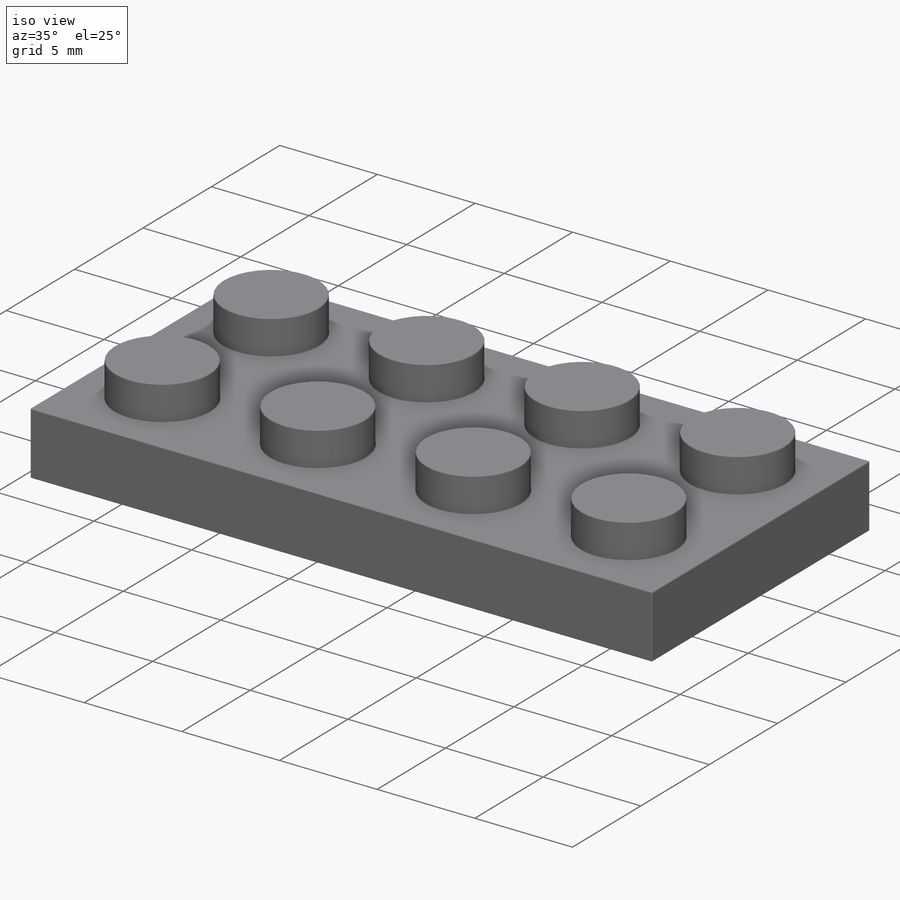
[diagram: iso view]
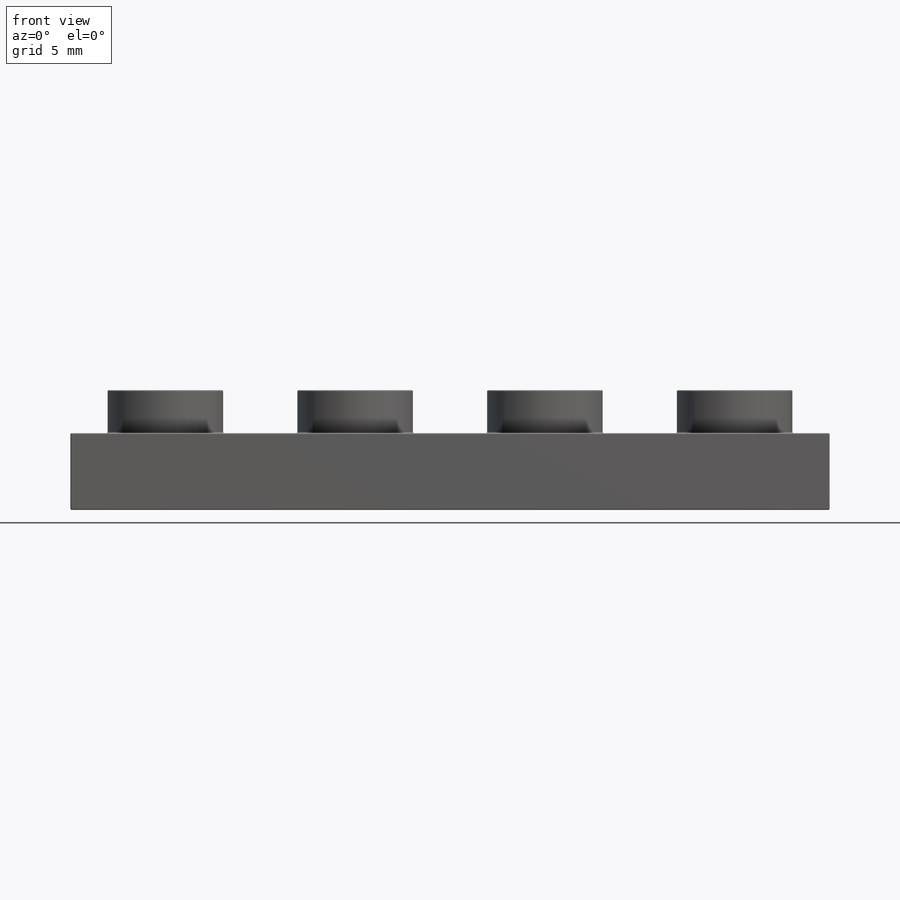
[diagram: front view]
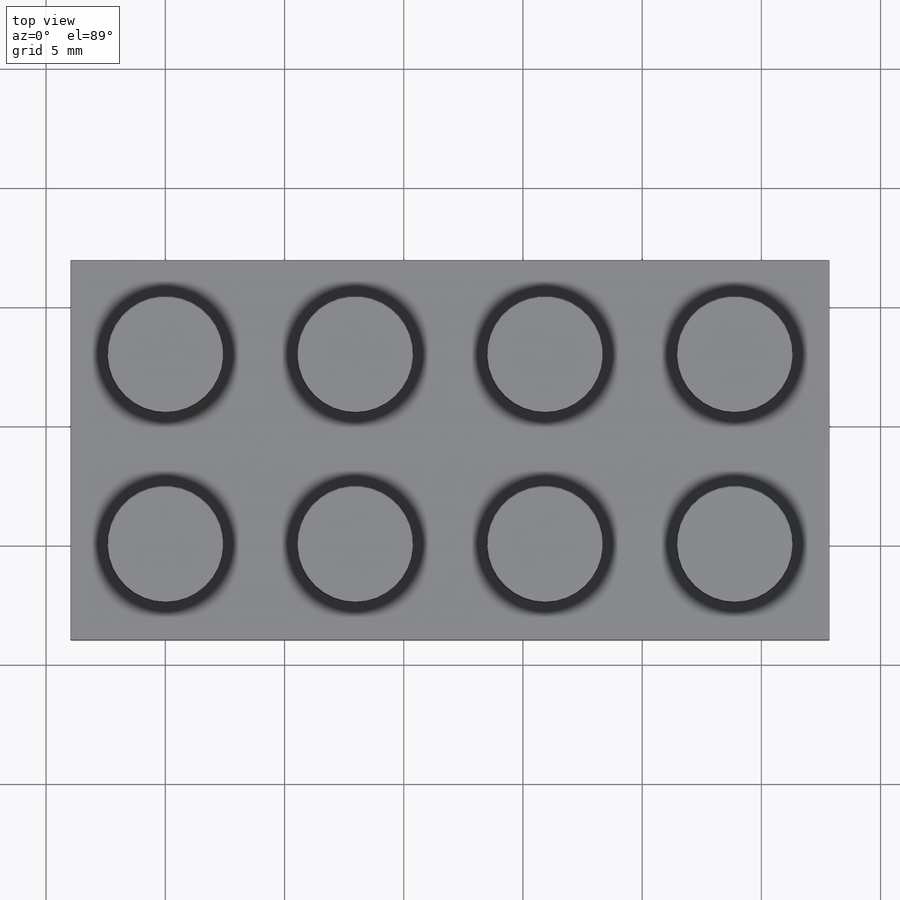
[diagram: top view]
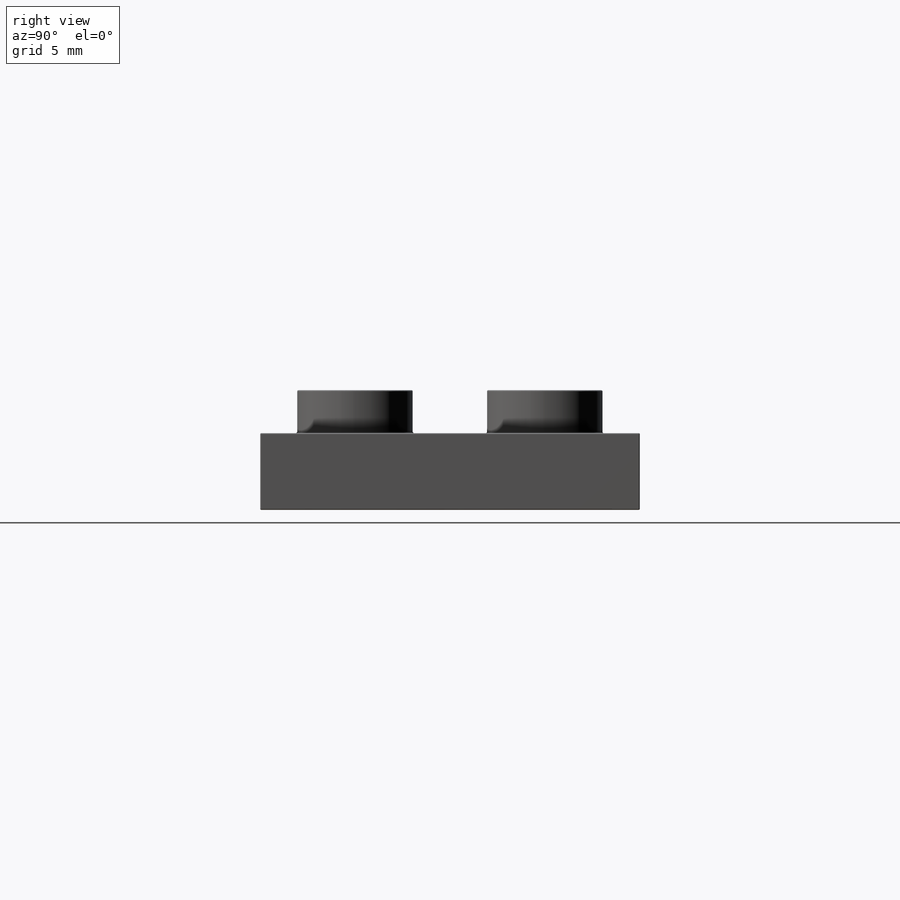
[diagram: right view]
SOLIDWORKS PART (.sldprt)
format: sldprt  version: not decoded by parser v0  size: 610,304 bytes
history: native  units: mm
features: sketch x4, extrude x3, pattern_linear x2, material x1, shell x1, cut_extrude x1, fillet x1 (+14 scaffold rows collapsed)
feature tree (27):
  scaffold x14  (default folders/planes/origin — collapsed)
  material  "Material <not specified>"
  sketch  "Sketch1"  dims[D1=7.96mm]
  extrude  "Extrude1"  Depth=3.22mm
  sketch  "Sketch2"  dims[D1=4.85mm]
  extrude  "Extrude2"  Depth=1.8mm
  pattern_linear  "LPattern1"  Count1=4 Count2=1 Spacing1=7.96mm Spacing2=10mm
  pattern_linear  "LPattern2"  Count1=2 Count2=1 Spacing1=7.96mm Spacing2=10mm
  shell  "Shell1"  Thickness=1.55mm
  sketch  "Sketch3"
  cut_extrude  "Extrude3"  Depth=0.14mm
  sketch  "Sketch4"  dims[c1.D1=~3.722243mm c1.D2=6.46mm c2.D1=0.86mm c2.D3=7.96mm]
  extrude  "Extrude4"  [1 undecoded]
  fillet  "Fillet1"  Radius=0.05mm
decode coverage: 10 of 12 modeling features carry decoded parameters
note: ~ marks probable driven/reference dimensions
note: 1 parameter value undecoded
note: suppression state not decoded; provenance and decode notes live in map.json
